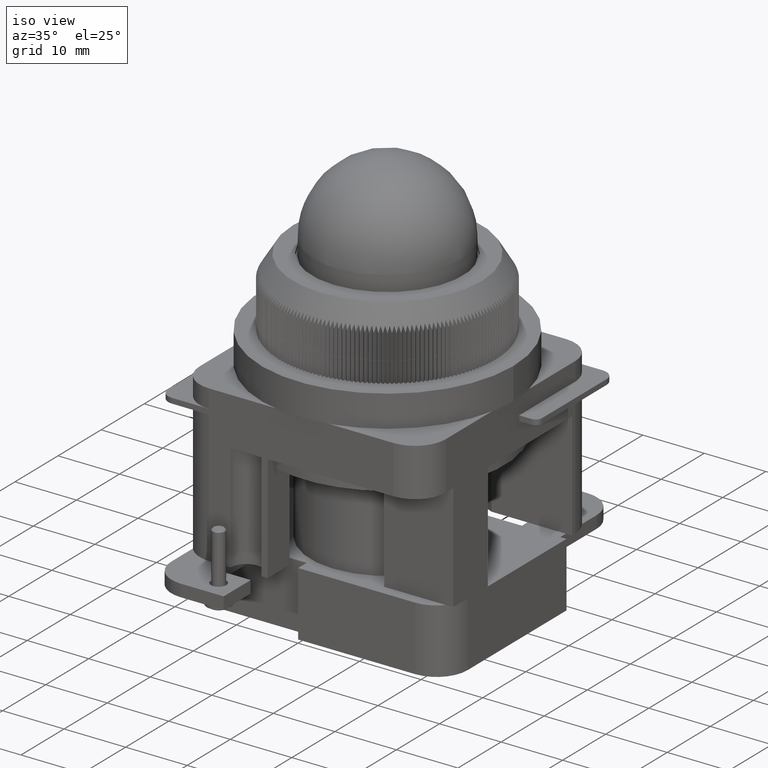
[diagram: clean part render]
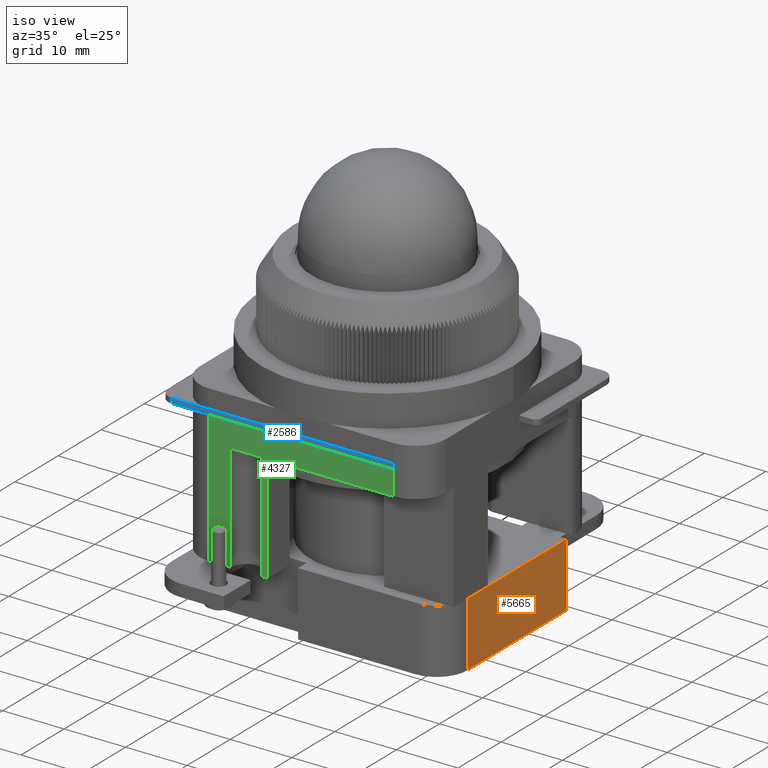
[diagram: same view with three faces highlighted in distinct colors, each labeled with its STEP entity id]
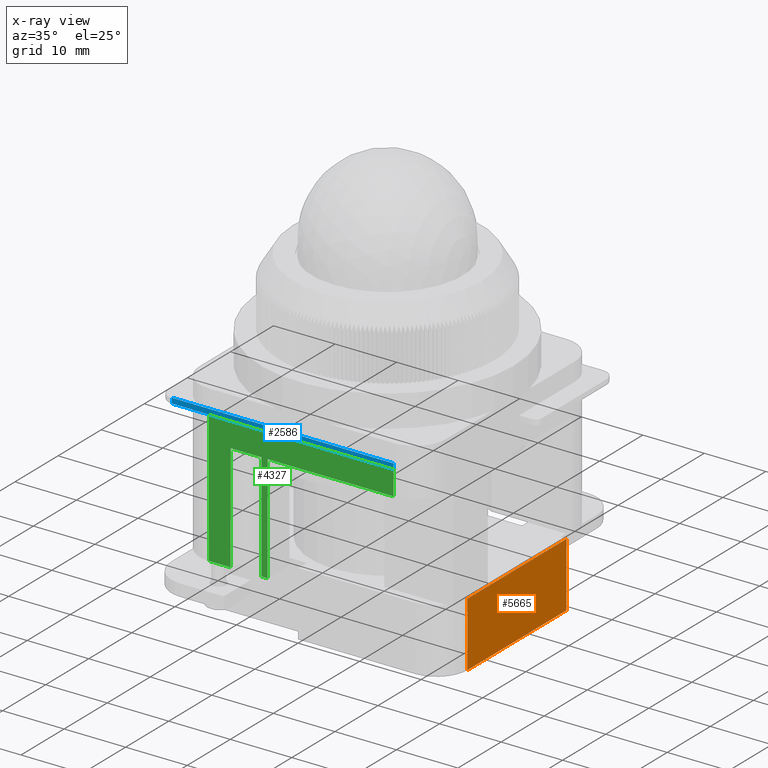
[diagram: x-ray of the same camera — body ghosted, the three highlighted faces saturated]
A machine part, iso view with three faces highlighted in distinct colors.
The next image is the same camera in x-ray (body ghosted, the three faces saturated) — at least one of them is partly hidden behind the body in this view.
Their STEP definitions:

[orange] entity #5665 — the highlighted planar face has unit normal (1, 0, 0).
#5305=CARTESIAN_POINT('',(2.510481237813957,18.434031687967234,0.0));
#5306=VERTEX_POINT('',#5305);
#5313=CARTESIAN_POINT('',(2.510481237813957,18.434031687967234,10.500000000000000));
#5314=VERTEX_POINT('',#5313);
#5315=CARTESIAN_POINT('',(2.510481237813957,18.434031687967234,0.0));
#5316=DIRECTION('',(0.0,0.0,1.0));
#5317=VECTOR('',#5316,10.500000000000000);
#5318=LINE('',#5315,#5317);
#5319=EDGE_CURVE('',#5306,#5314,#5318,.T.);
#5616=CARTESIAN_POINT('',(-20.489518762186044,18.434031687967234,10.500000000000000));
#5617=VERTEX_POINT('',#5616);
#5625=CARTESIAN_POINT('',(-20.489518762186044,18.434031687967234,0.0));
#5626=VERTEX_POINT('',#5625);
#5627=CARTESIAN_POINT('',(-20.489518762186044,18.434031687967234,0.0));
#5628=DIRECTION('',(0.0,0.0,1.0));
#5629=VECTOR('',#5628,10.500000000000000);
#5630=LINE('',#5627,#5629);
#5631=EDGE_CURVE('',#5626,#5617,#5630,.T.);
#5644=CARTESIAN_POINT('',(-20.489518762186044,18.434031687967234,0.0));
#5645=DIRECTION('',(0.0,1.0,0.0));
#5646=DIRECTION('',(0.0,0.0,1.0));
#5647=AXIS2_PLACEMENT_3D('',#5644,#5645,#5646);
#5648=PLANE('',#5647);
#5649=CARTESIAN_POINT('',(-20.489518762186044,18.434031687967234,10.500000000000000));
#5650=DIRECTION('',(1.0,0.0,0.0));
#5651=VECTOR('',#5650,23.0);
#5652=LINE('',#5649,#5651);
#5653=EDGE_CURVE('',#5617,#5314,#5652,.T.);
#5654=ORIENTED_EDGE('',*,*,#5653,.T.);
#5655=ORIENTED_EDGE('',*,*,#5319,.F.);
#5656=CARTESIAN_POINT('',(2.510481237813957,18.434031687967234,0.0));
#5657=DIRECTION('',(-1.0,0.0,0.0));
#5658=VECTOR('',#5657,23.0);
#5659=LINE('',#5656,#5658);
#5660=EDGE_CURVE('',#5306,#5626,#5659,.T.);
#5661=ORIENTED_EDGE('',*,*,#5660,.T.);
#5662=ORIENTED_EDGE('',*,*,#5631,.T.);
#5663=EDGE_LOOP('',(#5654,#5655,#5661,#5662));
#5664=FACE_OUTER_BOUND('',#5663,.T.);
#5665=ADVANCED_FACE('',(#5664),#5648,.T.);

[blue] entity #2586 — the highlighted planar face has unit normal (-0, -1, 0).
#2528=CARTESIAN_POINT('',(-6.172413716028473,31.141534544185863,0.850000000000000));
#2529=VERTEX_POINT('',#2528);
#2537=CARTESIAN_POINT('',(-6.172413716028473,31.141534544185863,0.0));
#2538=VERTEX_POINT('',#2537);
#2539=CARTESIAN_POINT('',(-6.172413716028473,31.141534544185863,0.0));
#2540=DIRECTION('',(0.0,0.0,1.0));
#2541=VECTOR('',#2540,0.850000000000000);
#2542=LINE('',#2539,#2541);
#2543=EDGE_CURVE('',#2538,#2529,#2542,.T.);
#2556=CARTESIAN_POINT('',(-0.237759988424923,31.141534544185863,0.0));
#2557=DIRECTION('',(0.0,1.0,0.0));
#2558=DIRECTION('',(0.0,0.0,1.0));
#2559=AXIS2_PLACEMENT_3D('',#2556,#2557,#2558);
#2560=PLANE('',#2559);
#2561=CARTESIAN_POINT('',(29.827586283971538,31.141534544185863,0.850000000000000));
#2562=VERTEX_POINT('',#2561);
#2563=CARTESIAN_POINT('',(-6.172413716028473,31.141534544185863,0.850000000000000));
#2564=DIRECTION('',(1.0,0.0,0.0));
#2565=VECTOR('',#2564,36.000000000000014);
#2566=LINE('',#2563,#2565);
#2567=EDGE_CURVE('',#2529,#2562,#2566,.T.);
#2568=ORIENTED_EDGE('',*,*,#2567,.T.);
#2569=CARTESIAN_POINT('',(29.827586283971538,31.141534544185863,0.0));
#2570=VERTEX_POINT('',#2569);
#2571=CARTESIAN_POINT('',(29.827586283971538,31.141534544185863,0.0));
#2572=DIRECTION('',(0.0,0.0,1.0));
#2573=VECTOR('',#2572,0.850000000000000);
#2574=LINE('',#2571,#2573);
#2575=EDGE_CURVE('',#2570,#2562,#2574,.T.);
#2576=ORIENTED_EDGE('',*,*,#2575,.F.);
#2577=CARTESIAN_POINT('',(-6.172413716028473,31.141534544185863,0.0));
#2578=DIRECTION('',(1.0,0.0,0.0));
#2579=VECTOR('',#2578,36.000000000000014);
#2580=LINE('',#2577,#2579);
#2581=EDGE_CURVE('',#2538,#2570,#2580,.T.);
#2582=ORIENTED_EDGE('',*,*,#2581,.F.);
#2583=ORIENTED_EDGE('',*,*,#2543,.T.);
#2584=EDGE_LOOP('',(#2568,#2576,#2582,#2583));
#2585=FACE_OUTER_BOUND('',#2584,.T.);
#2586=ADVANCED_FACE('',(#2585),#2560,.T.);

[green] entity #4327 — the highlighted planar face has unit normal (-0, -1, 0).
#3714=CARTESIAN_POINT('',(26.295586283971520,-6.629013328555073,21.500000000000000));
#3715=VERTEX_POINT('',#3714);
#3716=CARTESIAN_POINT('',(21.295586283971520,-6.629013328555070,21.500000000000000));
#3717=VERTEX_POINT('',#3716);
#3725=CARTESIAN_POINT('',(21.295586283971520,-6.629013328555070,4.0));
#3726=VERTEX_POINT('',#3725);
#3727=CARTESIAN_POINT('',(21.295586283971520,-6.629013328555070,4.0));
#3728=DIRECTION('',(0.0,0.0,1.0));
#3729=VECTOR('',#3728,17.500000000000000);
#3730=LINE('',#3727,#3729);
#3731=EDGE_CURVE('',#3726,#3717,#3730,.T.);
#3733=CARTESIAN_POINT('',(26.295586283971520,-6.629013328555073,4.0));
#3734=VERTEX_POINT('',#3733);
#3742=CARTESIAN_POINT('',(26.295586283971520,-6.629013328555073,4.0));
#3743=DIRECTION('',(0.0,0.0,1.0));
#3744=VECTOR('',#3743,17.500000000000000);
#3745=LINE('',#3742,#3744);
#3746=EDGE_CURVE('',#3734,#3715,#3745,.T.);
#3757=CARTESIAN_POINT('',(20.295586283971517,-6.629013328555070,4.0));
#3758=VERTEX_POINT('',#3757);
#3765=CARTESIAN_POINT('',(20.295586283971517,-6.629013328555070,21.500000000000000));
#3766=VERTEX_POINT('',#3765);
#3767=CARTESIAN_POINT('',(20.295586283971517,-6.629013328555070,4.0));
#3768=DIRECTION('',(0.0,0.0,1.0));
#3769=VECTOR('',#3768,17.500000000000000);
#3770=LINE('',#3767,#3769);
#3771=EDGE_CURVE('',#3758,#3766,#3770,.T.);
#3798=CARTESIAN_POINT('',(29.827586283971520,-6.629013328555072,21.500000000000000));
#3799=VERTEX_POINT('',#3798);
#3800=CARTESIAN_POINT('',(29.827586283971520,-6.629013328555072,21.500000000000000));
#3801=DIRECTION('',(-1.0,0.0,0.0));
#3802=VECTOR('',#3801,3.532000000000000);
#3803=LINE('',#3800,#3802);
#3804=EDGE_CURVE('',#3799,#3715,#3803,.T.);
#3830=CARTESIAN_POINT('',(21.295586283971520,-6.629013328555070,21.500000000000000));
#3831=DIRECTION('',(-1.0,0.0,0.0));
#3832=VECTOR('',#3831,1.000000000000004);
#3833=LINE('',#3830,#3832);
#3834=EDGE_CURVE('',#3717,#3766,#3833,.T.);
#3855=CARTESIAN_POINT('',(-0.172413716028478,-6.629013328555068,4.0));
#3856=VERTEX_POINT('',#3855);
#3864=CARTESIAN_POINT('',(20.295586283971517,-6.629013328555070,4.0));
#3865=DIRECTION('',(-1.0,0.0,0.0));
#3866=VECTOR('',#3865,20.467999999999993);
#3867=LINE('',#3864,#3866);
#3868=EDGE_CURVE('',#3758,#3856,#3867,.T.);
#3880=CARTESIAN_POINT('',(26.295586283971520,-6.629013328555073,4.0));
#3881=DIRECTION('',(-1.0,0.0,0.0));
#3882=VECTOR('',#3881,5.0);
#3883=LINE('',#3880,#3882);
#3884=EDGE_CURVE('',#3734,#3726,#3883,.T.);
#4291=CARTESIAN_POINT('',(29.827586283971520,-6.629013328555072,0.0));
#4292=DIRECTION('',(0.0,-1.0,0.0));
#4293=DIRECTION('',(0.0,0.0,-1.0));
#4294=AXIS2_PLACEMENT_3D('',#4291,#4292,#4293);
#4295=PLANE('',#4294);
#4296=ORIENTED_EDGE('',*,*,#3884,.T.);
#4297=ORIENTED_EDGE('',*,*,#3731,.T.);
#4298=ORIENTED_EDGE('',*,*,#3834,.T.);
#4299=ORIENTED_EDGE('',*,*,#3771,.F.);
#4300=ORIENTED_EDGE('',*,*,#3868,.T.);
#4301=CARTESIAN_POINT('',(-0.172413716028478,-6.629013328555068,0.0));
#4302=VERTEX_POINT('',#4301);
#4303=CARTESIAN_POINT('',(-0.172413716028478,-6.629013328555068,0.0));
#4304=DIRECTION('',(0.0,0.0,1.0));
#4305=VECTOR('',#4304,4.0);
#4306=LINE('',#4303,#4305);
#4307=EDGE_CURVE('',#4302,#3856,#4306,.T.);
#4308=ORIENTED_EDGE('',*,*,#4307,.F.);
#4309=CARTESIAN_POINT('',(29.827586283971520,-6.629013328555072,0.0));
#4310=VERTEX_POINT('',#4309);
#4311=CARTESIAN_POINT('',(-0.172413716028478,-6.629013328555068,0.0));
#4312=DIRECTION('',(1.0,0.0,0.0));
#4313=VECTOR('',#4312,29.999999999999996);
#4314=LINE('',#4311,#4313);
#4315=EDGE_CURVE('',#4302,#4310,#4314,.T.);
#4316=ORIENTED_EDGE('',*,*,#4315,.T.);
#4317=CARTESIAN_POINT('',(29.827586283971520,-6.629013328555072,0.0));
#4318=DIRECTION('',(0.0,0.0,1.0));
#4319=VECTOR('',#4318,21.500000000000000);
#4320=LINE('',#4317,#4319);
#4321=EDGE_CURVE('',#4310,#3799,#4320,.T.);
#4322=ORIENTED_EDGE('',*,*,#4321,.T.);
#4323=ORIENTED_EDGE('',*,*,#3804,.T.);
#4324=ORIENTED_EDGE('',*,*,#3746,.F.);
#4325=EDGE_LOOP('',(#4296,#4297,#4298,#4299,#4300,#4308,#4316,#4322,#4323,#4324));
#4326=FACE_OUTER_BOUND('',#4325,.T.);
#4327=ADVANCED_FACE('',(#4326),#4295,.T.);